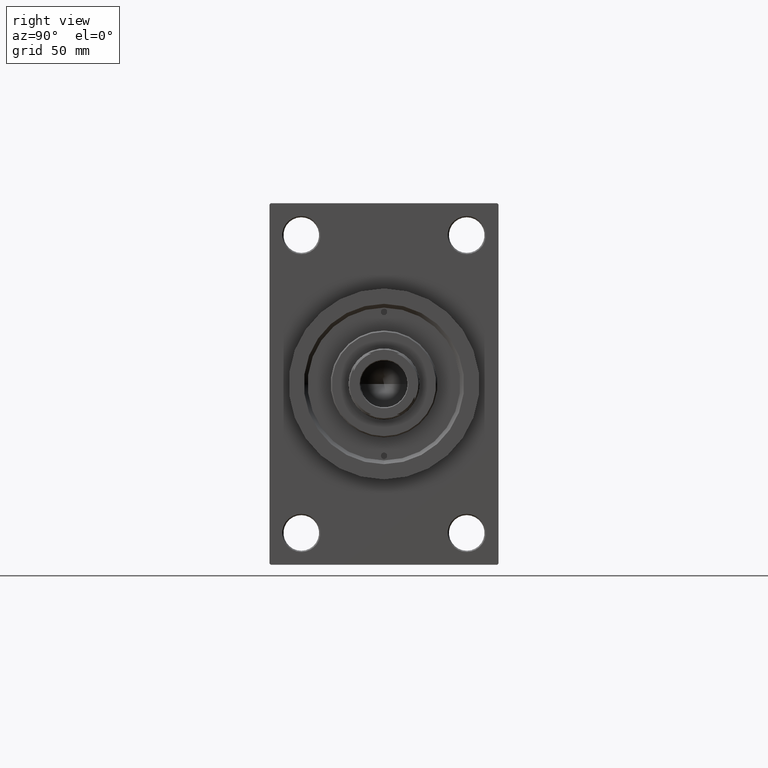
[diagram: clean part render]
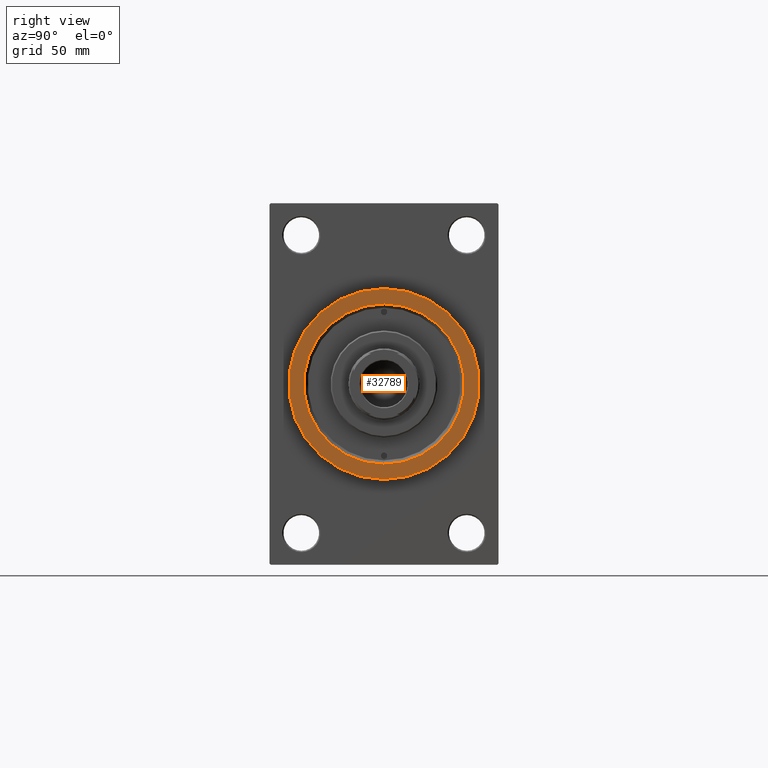
[diagram: same view with one face highlighted and labeled with its STEP entity id]
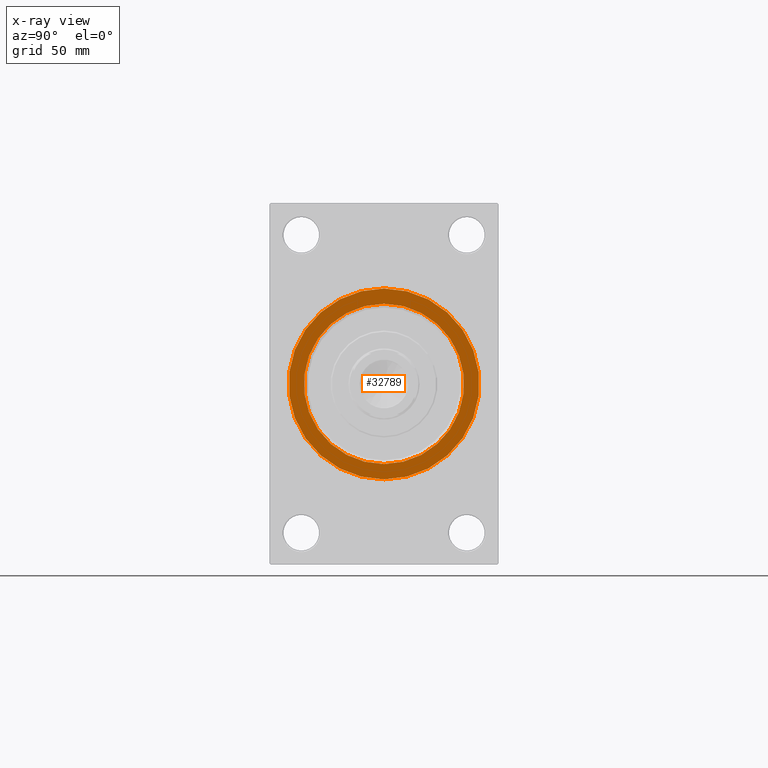
[diagram: x-ray of the same camera — body ghosted, the highlighted face saturated]
A machine part, right view. The second image highlights one B-rep face of the part: STEP entity #32789.
The next image is the same camera in x-ray: the body ghosted, the highlighted face saturated — about 0% of this face is hidden behind the body in this view.
In plain terms, the highlighted planar face has unit normal (1, 0, 0).
Its self-contained STEP definition (entity closure, byte-faithful):
#398 = VERTEX_POINT ( 'NONE', #19516 ) ;
#785 = AXIS2_PLACEMENT_3D ( 'NONE', #44705, #29843, #26972 ) ;
#1682 = DIRECTION ( 'NONE',  ( 0.000000000000000000, 0.000000000000000000, -1.000000000000000000 ) ) ;
#3572 = VERTEX_POINT ( 'NONE', #42275 ) ;
#4407 = CARTESIAN_POINT ( 'NONE',  ( 186.0000000000000000, 4.592425496802575156E-15, -37.50000000000000711 ) ) ;
#7103 = FACE_BOUND ( 'NONE', #12742, .T. ) ;
#8015 = CIRCLE ( 'NONE', #18754, 31.50000000000005684 ) ;
#8721 = CIRCLE ( 'NONE', #9488, 37.50000000000000711 ) ;
#9488 = AXIS2_PLACEMENT_3D ( 'NONE', #34526, #42204, #39101 ) ;
#9921 = EDGE_CURVE ( 'NONE', #3572, #41766, #8721, .T. ) ;
#10940 = FACE_OUTER_BOUND ( 'NONE', #17227, .T. ) ;
#12742 = EDGE_LOOP ( 'NONE', ( #15231, #22260 ) ) ;
#12903 = ORIENTED_EDGE ( 'NONE', *, *, #46326, .T. ) ;
#15231 = ORIENTED_EDGE ( 'NONE', *, *, #37053, .T. ) ;
#16561 = CARTESIAN_POINT ( 'NONE',  ( 186.0000000000000000, 0.000000000000000000, 0.000000000000000000 ) ) ;
#17227 = EDGE_LOOP ( 'NONE', ( #47415, #12903 ) ) ;
#18754 = AXIS2_PLACEMENT_3D ( 'NONE', #30189, #44816, #26607 ) ;
#19516 = CARTESIAN_POINT ( 'NONE',  ( 186.0000000000000000, 0.000000000000000000, -31.50000000000005684 ) ) ;
#21763 = DIRECTION ( 'NONE',  ( 1.000000000000000000, 0.000000000000000000, 0.000000000000000000 ) ) ;
#22260 = ORIENTED_EDGE ( 'NONE', *, *, #29481, .T. ) ;
#26607 = DIRECTION ( 'NONE',  ( 0.000000000000000000, 0.000000000000000000, -1.000000000000000000 ) ) ;
#26972 = DIRECTION ( 'NONE',  ( 0.000000000000000000, 0.000000000000000000, -1.000000000000000000 ) ) ;
#27419 = AXIS2_PLACEMENT_3D ( 'NONE', #16561, #35271, #1682 ) ;
#28186 = CIRCLE ( 'NONE', #27419, 31.50000000000005684 ) ;
#29151 = CIRCLE ( 'NONE', #785, 37.50000000000000711 ) ;
#29481 = EDGE_CURVE ( 'NONE', #30661, #398, #8015, .T. ) ;
#29843 = DIRECTION ( 'NONE',  ( 1.000000000000000000, 0.000000000000000000, 0.000000000000000000 ) ) ;
#30189 = CARTESIAN_POINT ( 'NONE',  ( 186.0000000000000000, 0.000000000000000000, 0.000000000000000000 ) ) ;
#30661 = VERTEX_POINT ( 'NONE', #45242 ) ;
#32789 = ADVANCED_FACE ( 'NONE', ( #7103, #10940 ), #43336, .T. ) ;
#34526 = CARTESIAN_POINT ( 'NONE',  ( 186.0000000000000000, 0.000000000000000000, 0.000000000000000000 ) ) ;
#35271 = DIRECTION ( 'NONE',  ( -1.000000000000000000, -0.000000000000000000, -0.000000000000000000 ) ) ;
#35919 = DIRECTION ( 'NONE',  ( 0.000000000000000000, 0.000000000000000000, -1.000000000000000000 ) ) ;
#36463 = AXIS2_PLACEMENT_3D ( 'NONE', #46918, #21763, #35919 ) ;
#37053 = EDGE_CURVE ( 'NONE', #398, #30661, #28186, .T. ) ;
#39101 = DIRECTION ( 'NONE',  ( 0.000000000000000000, 0.000000000000000000, -1.000000000000000000 ) ) ;
#41766 = VERTEX_POINT ( 'NONE', #4407 ) ;
#42204 = DIRECTION ( 'NONE',  ( 1.000000000000000000, 0.000000000000000000, 0.000000000000000000 ) ) ;
#42275 = CARTESIAN_POINT ( 'NONE',  ( 186.0000000000000000, 0.000000000000000000, 37.50000000000000711 ) ) ;
#43336 = PLANE ( 'NONE',  #36463 ) ;
#44705 = CARTESIAN_POINT ( 'NONE',  ( 186.0000000000000000, 0.000000000000000000, 0.000000000000000000 ) ) ;
#44816 = DIRECTION ( 'NONE',  ( -1.000000000000000000, -0.000000000000000000, -0.000000000000000000 ) ) ;
#45242 = CARTESIAN_POINT ( 'NONE',  ( 186.0000000000000000, 3.857637417314169789E-15, 31.50000000000005684 ) ) ;
#46326 = EDGE_CURVE ( 'NONE', #41766, #3572, #29151, .T. ) ;
#46918 = CARTESIAN_POINT ( 'NONE',  ( 186.0000000000000000, 0.000000000000000000, 0.000000000000000000 ) ) ;
#47415 = ORIENTED_EDGE ( 'NONE', *, *, #9921, .T. ) ;